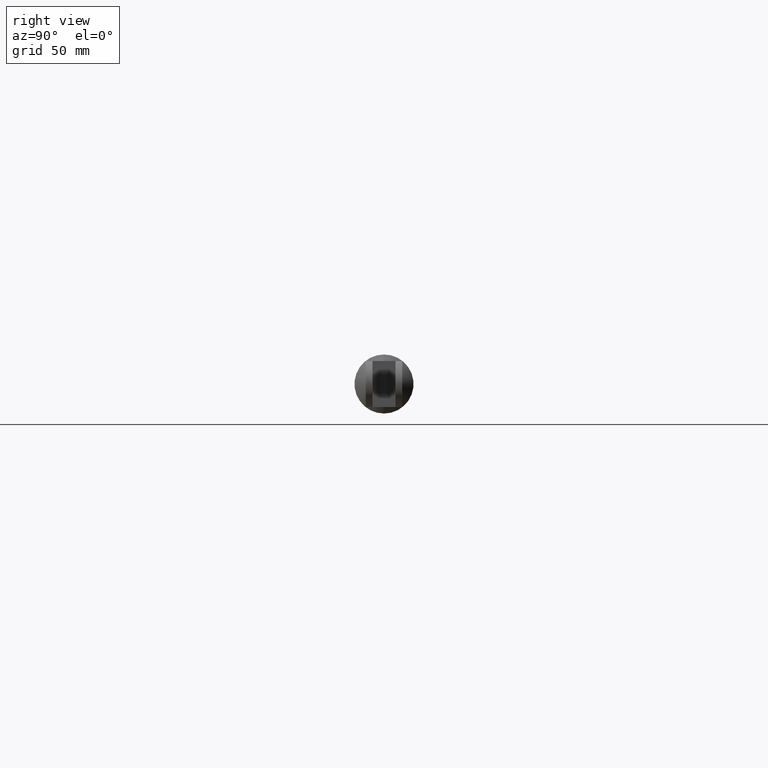
[diagram: clean part render]
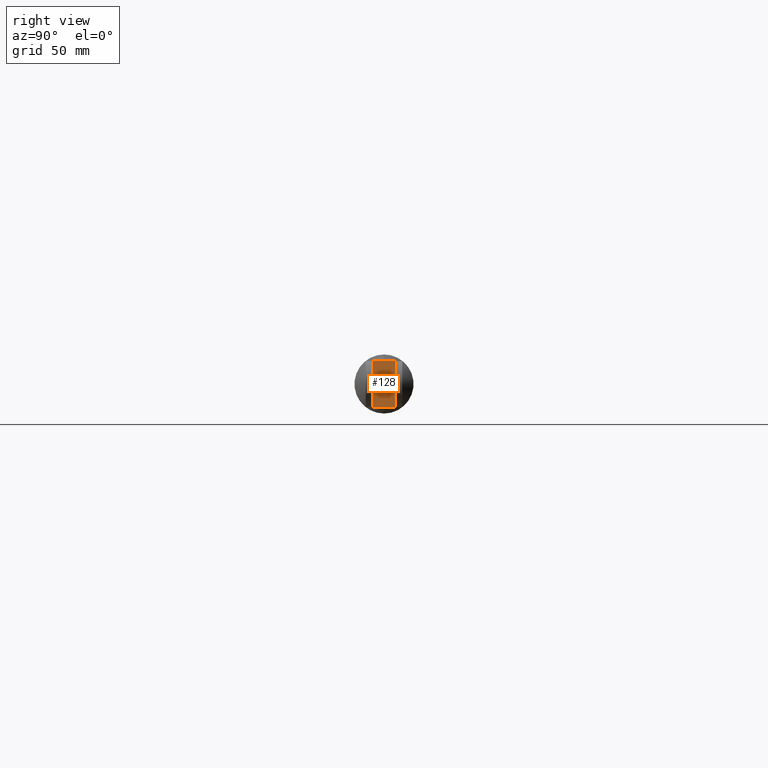
[diagram: same view with one face highlighted and labeled with its STEP entity id]
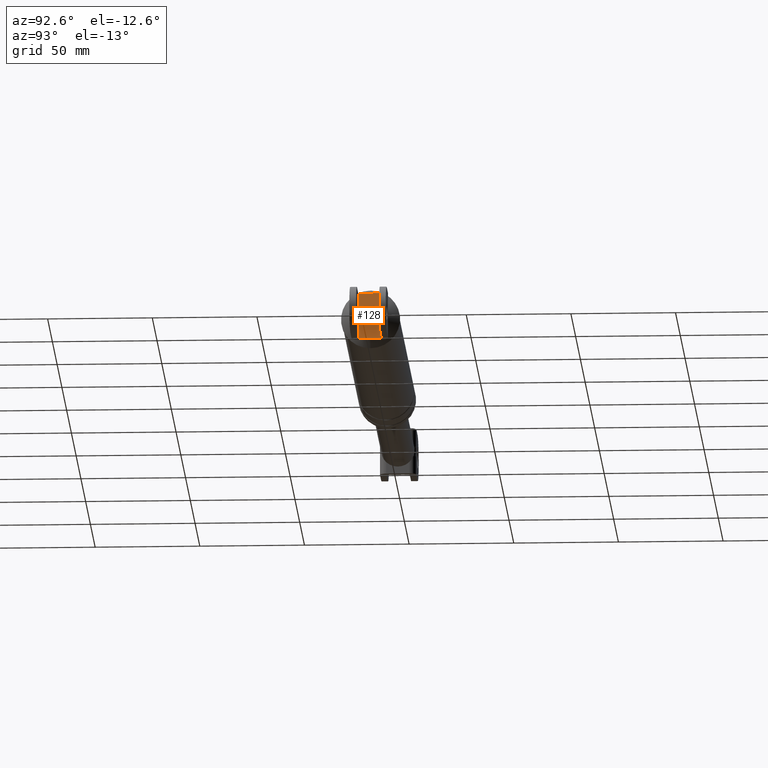
[diagram: same view with one face highlighted and labeled with its STEP entity id]
A machine part, right view. The second image highlights one B-rep face of the part: STEP entity #128.
A second angle (auxiliary view) of the same face is appended — the face is thin or edge-on in the first view.
In plain terms, the highlighted planar face has unit normal (-1, 0, 0).
Its self-contained STEP definition (entity closure, byte-faithful):
#128=ADVANCED_FACE('',(#347),#346,.F.);
#346=PLANE('',#1022);
#347=FACE_OUTER_BOUND('',#1023,.T.);
#1019=CARTESIAN_POINT('',(3.63655568841E+002,-6.60000000000E+000,1.80924635626E+002));
#1020=DIRECTION('',(-1.00000000000E+000,0.00000000000E+000,0.00000000000E+000));
#1021=DIRECTION('',(0.00000000000E+000,0.00000000000E+000,1.00000000000E+000));
#1022=AXIS2_PLACEMENT_3D('',#1019,#1020,#1021);
#1023=EDGE_LOOP('',(#1604,#1605,#1606,#1607));
#1604=ORIENTED_EDGE('',*,*,#1901,.T.);
#1605=ORIENTED_EDGE('',*,*,#1896,.F.);
#1606=ORIENTED_EDGE('',*,*,#1905,.F.);
#1607=ORIENTED_EDGE('',*,*,#1885,.T.);
#1885=EDGE_CURVE('',#2222,#2215,#2223,.T.);
#1896=EDGE_CURVE('',#2289,#2274,#2296,.T.);
#1901=EDGE_CURVE('',#2215,#2274,#2329,.T.);
#1905=EDGE_CURVE('',#2222,#2289,#2354,.T.);
#2215=VERTEX_POINT('',#3274);
#2222=VERTEX_POINT('',#3278);
#2223=LINE('',#3279,#3280);
#2274=VERTEX_POINT('',#3311);
#2289=VERTEX_POINT('',#3321);
#2296=LINE('',#3325,#3326);
#2329=LINE('',#3345,#3346);
#2354=LINE('',#3358,#3359);
#3274=CARTESIAN_POINT('',(3.63655568841E+002,-5.50000000000E+000,1.83124635626E+002));
#3278=CARTESIAN_POINT('',(3.63655568841E+002,-5.50000000000E+000,2.05124635626E+002));
#3279=CARTESIAN_POINT('',(3.63655568841E+002,-5.50000000000E+000,2.05124635626E+002));
#3280=VECTOR('',#3281,2.20000000000E+001);
#3281=DIRECTION('',(0.00000000000E+000,0.00000000000E+000,-1.00000000000E+000));
#3311=CARTESIAN_POINT('',(3.63655568841E+002,5.50000000000E+000,1.83124635626E+002));
#3321=CARTESIAN_POINT('',(3.63655568841E+002,5.50000000000E+000,2.05124635626E+002));
#3325=CARTESIAN_POINT('',(3.63655568841E+002,5.50000000000E+000,2.05124635626E+002));
#3326=VECTOR('',#3327,2.20000000000E+001);
#3327=DIRECTION('',(0.00000000000E+000,0.00000000000E+000,-1.00000000000E+000));
#3345=CARTESIAN_POINT('',(3.63655568841E+002,-5.50000000000E+000,1.83124635626E+002));
#3346=VECTOR('',#3347,1.10000000000E+001);
#3347=DIRECTION('',(0.00000000000E+000,1.00000000000E+000,0.00000000000E+000));
#3358=CARTESIAN_POINT('',(3.63655568841E+002,-5.50000000000E+000,2.05124635626E+002));
#3359=VECTOR('',#3360,1.10000000000E+001);
#3360=DIRECTION('',(0.00000000000E+000,1.00000000000E+000,0.00000000000E+000));